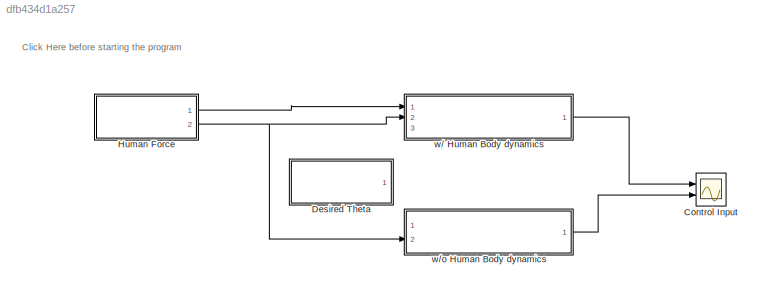
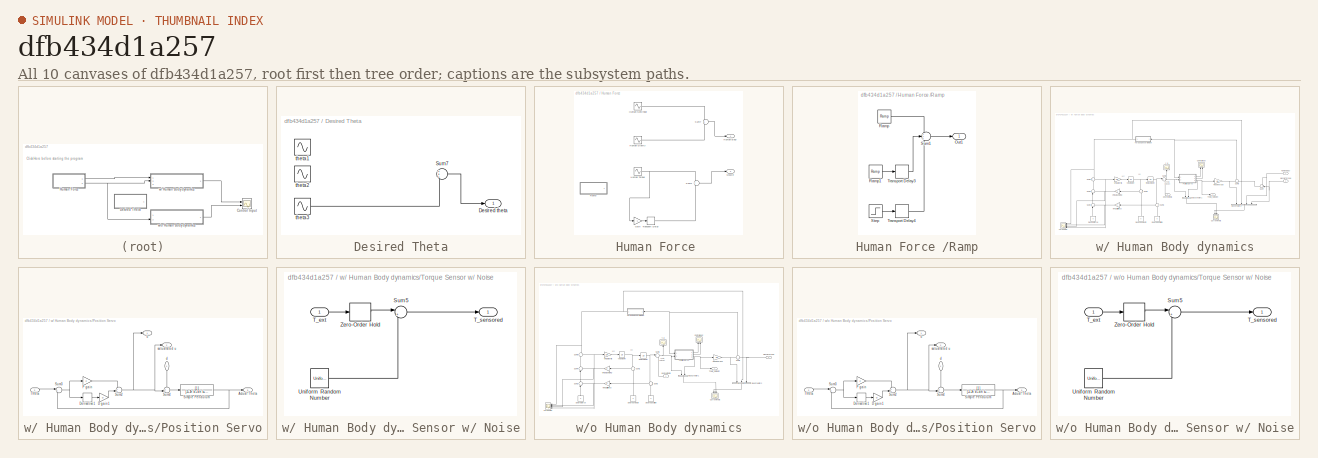
[diagram: thumbnail index - all 10 canvases of the model, root first then tree order]
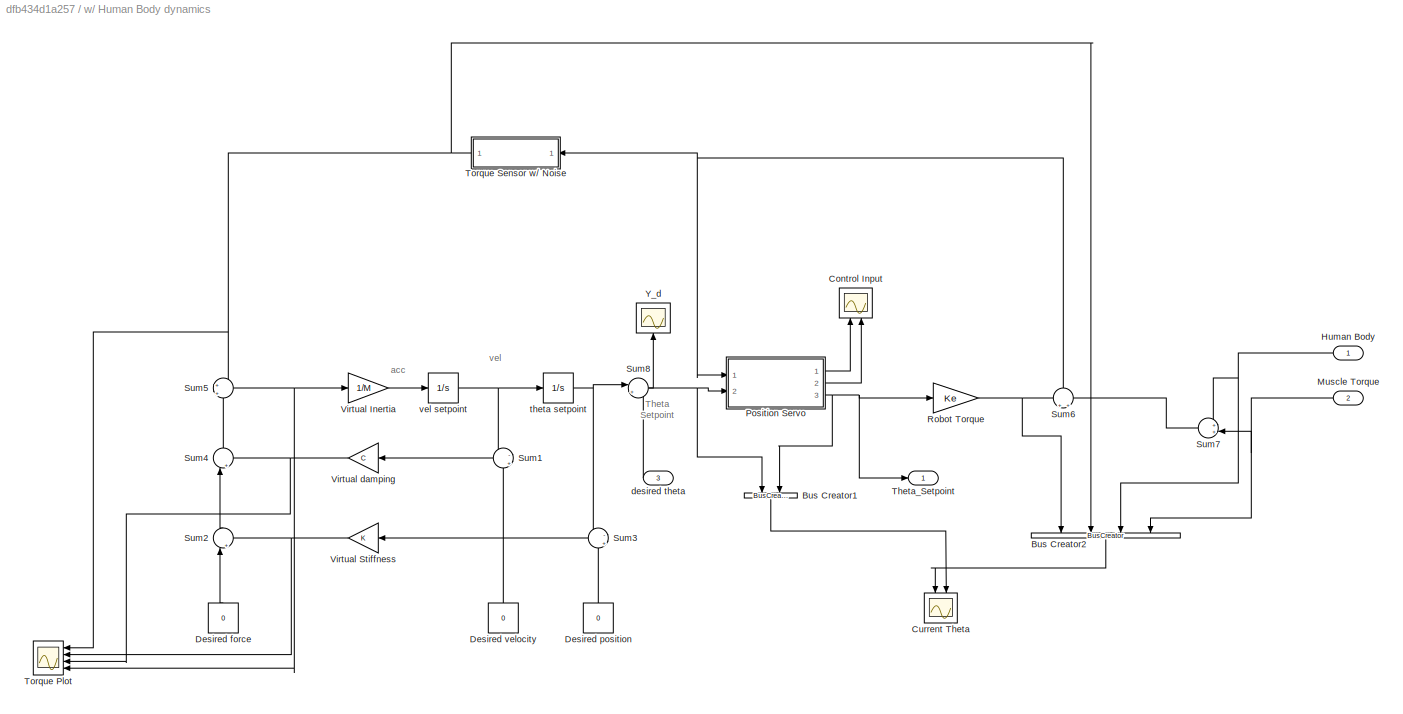
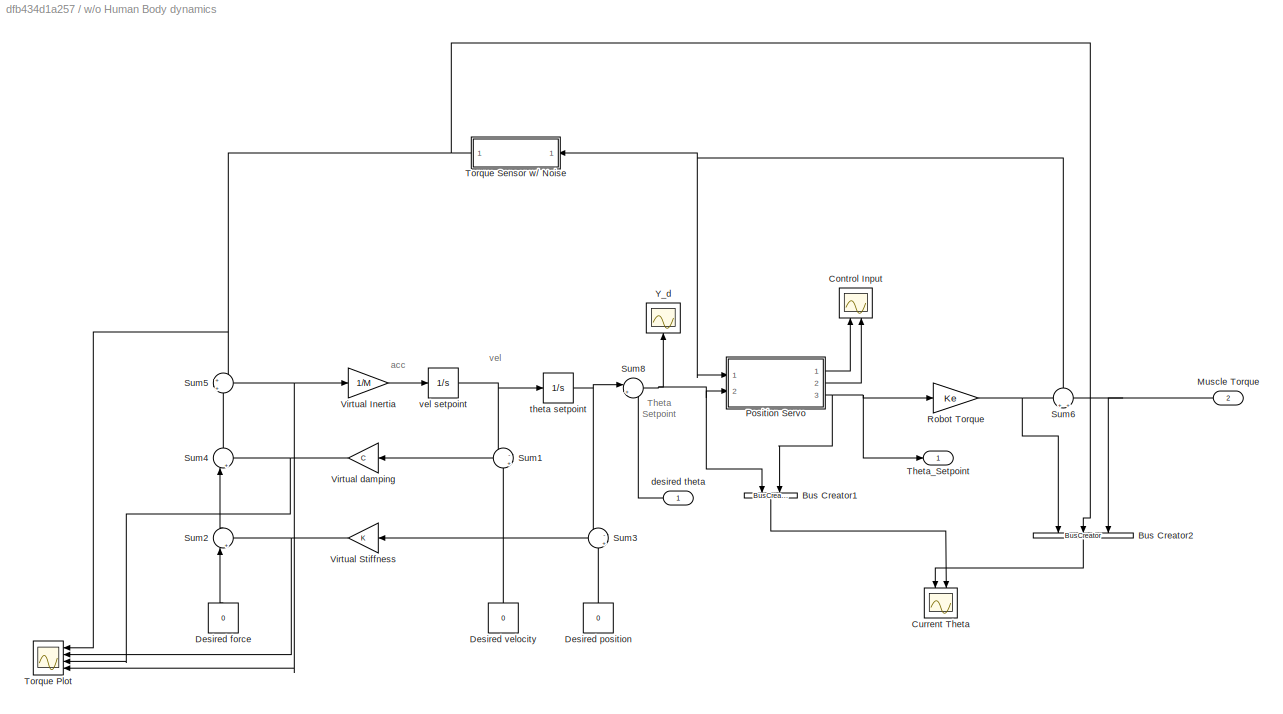
MODEL slx_dfb434d1a257
KIND model
CONFIG AbsTol = auto
CONFIG EnableMultiTasking = off
CONFIG FixedStep = auto
CONFIG MaxStep = auto
CONFIG MinStep = auto
CONFIG RelTol = 1e-3
CONFIG SampleTimeConstraint = Unconstrained
CONFIG Solver = VariableStepAuto
CONFIG SolverName = VariableStepAuto
CONFIG StartTime = 0.0
CONFIG StopTime = 30
BLOCK [Scope] Control Input
  NumInputPorts = 2
  Ports = [2]
  ScopeSpecificationString = Simulink.scopes.TimeScopeBlockCfg('CurrentConfiguration', extmgr.ConfigurationSet(extmgr.Configuration('Core','General UI',true,'FigureColor',[1 1 1]),extmgr.Configuration('Core','Source UI',true),extmgr.Configuration('Sources','WiredSimulink',true,'SampleTime','dt'),extmgr.Configuration('Visuals','Time Domain',true,'SerializedDisplays',{struct('MinYLimReal','-0.95028','MaxYLimReal','0.9403','YLab...<+1732ch>
BLOCK [SubSystem] Desired Theta
  Ports = [0, 1]
  RequestExecContextInheritance = off
  Variant = off
BLOCK [Outport] Desired Theta/Desired theta
  IconDisplay = Port number
BLOCK [Sum] Desired Theta/Sum7
  IconShape = round
  InputSameDT = off
  Inputs = +++
  OutDataTypeStr = Inherit: Inherit via internal rule
  Ports = [3, 1]
  SaturateOnIntegerOverflow = off
BLOCK [Sin] Desired Theta/theta1
  Amplitude = 0.51
  Frequency = 2*pi*1.21
  Ports = [0, 1]
  SampleTime = dt
BLOCK [Sin] Desired Theta/theta2
  Amplitude = 1.2
  Frequency = 2*pi*0.32
  Ports = [0, 1]
  SampleTime = dt
BLOCK [Sin] Desired Theta/theta3
  Amplitude = 3.5
  Frequency = 2*pi*0.126
  Ports = [0, 1]
BLOCK [SubSystem] Human Force 
  Ports = [0, 2]
  RequestExecContextInheritance = off
  Variant = off
BLOCK [Gain] Human Force /Gain
  Gain = -1
  OutDataTypeStr = Inherit: Inherit via internal rule
  ParamDataTypeStr = Inherit: Inherit via internal rule
  SaturateOnIntegerOverflow = off
BLOCK [Outport] Human Force /Human Body
  IconDisplay = Port number
BLOCK [Sin] Human Force /Human Gravity
  Amplitude = 7
  Frequency = 2*pi*0.13
  Ports = [0, 1]
BLOCK [Sin] Human Force /Human Nonlinear
  Amplitude = 1.3
  Frequency = 2*pi*0.63
  Ports = [0, 1]
BLOCK [Sin] Human Force /Human Torque
  Amplitude = 10
  Frequency = 2*JJ*pi
  Ports = [0, 1]
BLOCK [Outport] Human Force /Muscle
  IconDisplay = Port number
  Port = 2
BLOCK [SubSystem] Human Force /Ramp
  Ports = [0, 1]
  RequestExecContextInheritance = off
  Variant = off
BLOCK [Outport] Human Force /Ramp/Out1
  IconDisplay = Port number
BLOCK [Reference] Human Force /Ramp/Ramp  REF=simulink/Sources/Ramp
  Ports = [0, 1]
  SourceBlock = simulink/Sources/Ramp
  SourceType = Ramp
BLOCK [Reference] Human Force /Ramp/Ramp1  REF=simulink/Sources/Ramp
  Ports = [0, 1]
  SourceBlock = simulink/Sources/Ramp
  SourceType = Ramp
BLOCK [Step] Human Force /Ramp/Step
  After = -10
  SampleTime = 0
  Time = 0
BLOCK [Sum] Human Force /Ramp/Sum1
  IconShape = round
  InputSameDT = off
  Inputs = +++
  OutDataTypeStr = Inherit: Inherit via internal rule
  Ports = [3, 1]
  SaturateOnIntegerOverflow = off
BLOCK [TransportDelay] Human Force /Ramp/Transport Delay3
  DelayTime = 10
  Ports = [1, 1]
BLOCK [TransportDelay] Human Force /Ramp/Transport Delay4
  DelayTime = 13
  Ports = [1, 1]
BLOCK [Sum] Human Force /Sum1
  IconShape = round
  InputSameDT = off
  Inputs = +++
  OutDataTypeStr = Inherit: Inherit via internal rule
  Ports = [3, 1]
  SaturateOnIntegerOverflow = off
BLOCK [Sum] Human Force /Sum7
  IconShape = round
  InputSameDT = off
  OutDataTypeStr = Inherit: Inherit via internal rule
  Ports = [2, 1]
  SaturateOnIntegerOverflow = off
BLOCK [TransportDelay] Human Force /Transport Delay
  DelayTime = 3*1/JJ
  Ports = [1, 1]
BLOCK [SubSystem] w// Human Body dynamics
  Ports = [3, 1]
  RequestExecContextInheritance = off
  Variant = off
BLOCK [BusCreator] w// Human Body dynamics/Bus Creator1
  DisplayOption = bar
  InheritFromInputs = on
  Inputs = 2
  Ports = [2, 1]
BLOCK [BusCreator] w// Human Body dynamics/Bus Creator2
  DisplayOption = bar
  InheritFromInputs = on
  Inputs = 4
  Ports = [4, 1]
BLOCK [Scope] w// Human Body dynamics/Control Input
  NumInputPorts = 2
  Ports = [2]
  ScopeSpecificationString = Simulink.scopes.TimeScopeBlockCfg('CurrentConfiguration', extmgr.ConfigurationSet(extmgr.Configuration('Core','General UI',true,'FigureColor',[1 1 1]),extmgr.Configuration('Core','Source UI',true),extmgr.Configuration('Sources','WiredSimulink',true,'SampleTime','dt','DataLoggingVariableName','ScopeData1'),extmgr.Configuration('Visuals','Time Domain',true,'SerializedDisplays',{struct('MinYLimReal',...<+1734ch>
BLOCK [Scope] w// Human Body dynamics/Current Theta
  NumInputPorts = 2
  Ports = [2]
  ScopeSpecificationString = Simulink.scopes.TimeScopeBlockCfg('CurrentConfiguration', extmgr.ConfigurationSet(extmgr.Configuration('Core','General UI',true,'FigureColor',[1 1 1]),extmgr.Configuration('Core','Source UI',true),extmgr.Configuration('Sources','WiredSimulink',true,'SampleTime','dt','DataLoggingVariableName','ScopeData2'),extmgr.Configuration('Visuals','Time Domain',true,'SerializedDisplays',{struct('MinYLimReal',...<+2815ch>
BLOCK [Constant] w// Human Body dynamics/Desired force
  SampleTime = dt
  Value = 0
BLOCK [Constant] w// Human Body dynamics/Desired position
  SampleTime = dt
  Value = 0
BLOCK [Constant] w// Human Body dynamics/Desired velocity
  SampleTime = dt
  Value = 0
BLOCK [Inport] w// Human Body dynamics/Human Body
  IconDisplay = Port number
BLOCK [Inport] w// Human Body dynamics/Muscle Torque
  IconDisplay = Port number
  Port = 2
BLOCK [SubSystem] w// Human Body dynamics/Position Servo
  Ports = [2, 3]
  RequestExecContextInheritance = off
  Variant = off
BLOCK [Outport] w// Human Body dynamics/Position Servo/Actual Theta
  IconDisplay = Port number
  Port = 3
BLOCK [Gain] w// Human Body dynamics/Position Servo/D gain1
  Gain = D
  OutDataTypeStr = Inherit: Inherit via internal rule
  ParamDataTypeStr = Inherit: Inherit via internal rule
  SaturateOnIntegerOverflow = off
BLOCK [Derivative] w// Human Body dynamics/Position Servo/Derivative1
BLOCK [Gain] w// Human Body dynamics/Position Servo/P gain
  Gain = P
  OutDataTypeStr = Inherit: Inherit via internal rule
  ParamDataTypeStr = Inherit: Inherit via internal rule
  SaturateOnIntegerOverflow = off
BLOCK [TransferFcn] w// Human Body dynamics/Position Servo/Simple Pendulum
  ContinuousStateAttributes = 'Single_Pendulum'
  Denominator = [J+Jh b+bh k+kh]
BLOCK [Sum] w// Human Body dynamics/Position Servo/Sum2
  IconShape = round
  InputSameDT = off
  Inputs = +|+
  OutDataTypeStr = Inherit: Inherit via internal rule
  Ports = [2, 1]
  SaturateOnIntegerOverflow = off
BLOCK [Sum] w// Human Body dynamics/Position Servo/Sum3
  IconShape = round
  InputSameDT = off
  Inputs = |+-
  OutDataTypeStr = Inherit: Inherit via internal rule
  Ports = [2, 1]
  SaturateOnIntegerOverflow = off
BLOCK [Sum] w// Human Body dynamics/Position Servo/Sum4
  IconShape = round
  InputSameDT = off
  Inputs = ++|
  OutDataTypeStr = Inherit: Inherit via internal rule
  Ports = [2, 1]
  SaturateOnIntegerOverflow = off
BLOCK [Inport] w// Human Body dynamics/Position Servo/Theta
  IconDisplay = Port number
  Port = 2
BLOCK [Inport] w// Human Body dynamics/Position Servo/d
  IconDisplay = Port number
BLOCK [Outport] w// Human Body dynamics/Position Servo/satuarated u
  IconDisplay = Port number
  Port = 2
BLOCK [Outport] w// Human Body dynamics/Position Servo/u
  IconDisplay = Port number
BLOCK [Gain] w// Human Body dynamics/Robot Torque
  Gain = Ke
  OutDataTypeStr = Inherit: Inherit via internal rule
  ParamDataTypeStr = Inherit: Inherit via internal rule
  SaturateOnIntegerOverflow = off
BLOCK [Sum] w// Human Body dynamics/Sum1
  IconShape = round
  InputSameDT = off
  Inputs = -|+
  OutDataTypeStr = Inherit: Inherit via internal rule
  Ports = [2, 1]
  SaturateOnIntegerOverflow = off
BLOCK [Sum] w// Human Body dynamics/Sum2
  IconShape = round
  InputSameDT = off
  Inputs = |++
  OutDataTypeStr = Inherit: Inherit via internal rule
  Ports = [2, 1]
  SaturateOnIntegerOverflow = off
BLOCK [Sum] w// Human Body dynamics/Sum3
  IconShape = round
  InputSameDT = off
  Inputs = -|+
  OutDataTypeStr = Inherit: Inherit via internal rule
  Ports = [2, 1]
  SaturateOnIntegerOverflow = off
BLOCK [Sum] w// Human Body dynamics/Sum4
  IconShape = round
  InputSameDT = off
  Inputs = |++
  OutDataTypeStr = Inherit: Inherit via internal rule
  Ports = [2, 1]
  SaturateOnIntegerOverflow = off
BLOCK [Sum] w// Human Body dynamics/Sum5
  IconShape = round
  InputSameDT = off
  Inputs = +|+
  OutDataTypeStr = Inherit: Inherit via internal rule
  Ports = [2, 1]
  SaturateOnIntegerOverflow = off
BLOCK [Sum] w// Human Body dynamics/Sum6
  IconShape = round
  InputSameDT = off
  Inputs = +|+
  OutDataTypeStr = Inherit: Inherit via internal rule
  Ports = [2, 1]
  SaturateOnIntegerOverflow = off
BLOCK [Sum] w// Human Body dynamics/Sum7
  IconShape = round
  InputSameDT = off
  OutDataTypeStr = Inherit: Inherit via internal rule
  Ports = [2, 1]
  SaturateOnIntegerOverflow = off
BLOCK [Sum] w// Human Body dynamics/Sum8
  IconShape = round
  InputSameDT = off
  Inputs = |++
  OutDataTypeStr = Inherit: Inherit via internal rule
  Ports = [2, 1]
  SaturateOnIntegerOverflow = off
BLOCK [Outport] w// Human Body dynamics/Theta_Setpoint
  IconDisplay = Port number
BLOCK [Scope] w// Human Body dynamics/Torque Plot
  NumInputPorts = 4
  Ports = [4]
  ScopeSpecificationString = Simulink.scopes.TimeScopeBlockCfg('CurrentConfiguration', extmgr.ConfigurationSet(extmgr.Configuration('Core','General UI',true),extmgr.Configuration('Core','Source UI',true),extmgr.Configuration('Sources','WiredSimulink',true,'SampleTime','dt','DataLoggingVariableName','ScopeData3'),extmgr.Configuration('Visuals','Time Domain',true,'SerializedDisplays',{struct('MinYLimReal','-15.7348','MaxYLimRea...<+1473ch>
BLOCK [SubSystem] w// Human Body dynamics/Torque Sensor w// Noise
  Ports = [1, 1]
  RequestExecContextInheritance = off
  Variant = off
BLOCK [Sum] w// Human Body dynamics/Torque Sensor w// Noise/Sum5
  IconShape = round
  InputSameDT = off
  Inputs = |++
  OutDataTypeStr = Inherit: Inherit via internal rule
  Ports = [2, 1]
  SaturateOnIntegerOverflow = off
BLOCK [Inport] w// Human Body dynamics/Torque Sensor w// Noise/T_ext
  IconDisplay = Port number
BLOCK [Outport] w// Human Body dynamics/Torque Sensor w// Noise/T_sensored
  IconDisplay = Port number
BLOCK [UniformRandomNumber] w// Human Body dynamics/Torque Sensor w// Noise/Uniform Random Number
  Maximum = 0.5
  Minimum = -0.5
  SampleTime = 0.005
BLOCK [ZeroOrderHold] w// Human Body dynamics/Torque Sensor w// Noise/Zero-Order Hold
  SampleTime = dt
BLOCK [Gain] w// Human Body dynamics/Virtual Inertia
  Gain = 1/M
  OutDataTypeStr = Inherit: Inherit via internal rule
  ParamDataTypeStr = Inherit: Inherit via internal rule
  SaturateOnIntegerOverflow = off
BLOCK [Gain] w// Human Body dynamics/Virtual Stiffness
  Gain = K
  OutDataTypeStr = Inherit: Inherit via internal rule
  ParamDataTypeStr = Inherit: Inherit via internal rule
  SaturateOnIntegerOverflow = off
BLOCK [Gain] w// Human Body dynamics/Virtual damping
  Gain = C
  OutDataTypeStr = Inherit: Inherit via internal rule
  ParamDataTypeStr = Inherit: Inherit via internal rule
  SaturateOnIntegerOverflow = off
BLOCK [Scope] w// Human Body dynamics/Y_d
  NumInputPorts = 1
  Ports = [1]
  ScopeSpecificationString = Simulink.scopes.TimeScopeBlockCfg('CurrentConfiguration', extmgr.ConfigurationSet(extmgr.Configuration('Core','General UI',true),extmgr.Configuration('Core','Source UI',true),extmgr.Configuration('Sources','WiredSimulink',true,'SampleTime','dt','DataLoggingVariableName','ScopeData4'),extmgr.Configuration('Visuals','Time Domain',true,'SerializedDisplays',{struct('MinYLimReal','-13.39338','MaxYLimRe...<+1377ch>
BLOCK [Inport] w// Human Body dynamics/desired theta
  IconDisplay = Port number
  Port = 3
BLOCK [Integrator] w// Human Body dynamics/theta setpoint
  Ports = [1, 1]
BLOCK [Integrator] w// Human Body dynamics/vel setpoint
  Ports = [1, 1]
BLOCK [SubSystem] w//o Human Body dynamics
  Ports = [2, 1]
  RequestExecContextInheritance = off
  Variant = off
BLOCK [BusCreator] w//o Human Body dynamics/Bus Creator1
  DisplayOption = bar
  InheritFromInputs = on
  Inputs = 2
  Ports = [2, 1]
BLOCK [BusCreator] w//o Human Body dynamics/Bus Creator2
  DisplayOption = bar
  InheritFromInputs = on
  Inputs = 3
  Ports = [3, 1]
BLOCK [Scope] w//o Human Body dynamics/Control Input
  NumInputPorts = 2
  Ports = [2]
  ScopeSpecificationString = Simulink.scopes.TimeScopeBlockCfg('CurrentConfiguration', extmgr.ConfigurationSet(extmgr.Configuration('Core','General UI',true,'FigureColor',[1 1 1]),extmgr.Configuration('Core','Source UI',true),extmgr.Configuration('Sources','WiredSimulink',true,'SampleTime','dt','DataLoggingVariableName','ScopeData1'),extmgr.Configuration('Visuals','Time Domain',true,'SerializedDisplays',{struct('MinYLimReal',...<+1733ch>
BLOCK [Scope] w//o Human Body dynamics/Current Theta
  NumInputPorts = 2
  Ports = [2]
  ScopeSpecificationString = Simulink.scopes.TimeScopeBlockCfg('CurrentConfiguration', extmgr.ConfigurationSet(extmgr.Configuration('Core','General UI',true,'FigureColor',[1 1 1]),extmgr.Configuration('Core','Source UI',true),extmgr.Configuration('Sources','WiredSimulink',true,'SampleTime','dt','DataLoggingVariableName','ScopeData2'),extmgr.Configuration('Visuals','Time Domain',true,'SerializedDisplays',{struct('MinYLimReal',...<+2685ch>
BLOCK [Constant] w//o Human Body dynamics/Desired force
  SampleTime = dt
  Value = 0
BLOCK [Constant] w//o Human Body dynamics/Desired position
  SampleTime = dt
  Value = 0
BLOCK [Constant] w//o Human Body dynamics/Desired velocity
  SampleTime = dt
  Value = 0
BLOCK [Inport] w//o Human Body dynamics/Muscle Torque
  IconDisplay = Port number
  Port = 2
BLOCK [SubSystem] w//o Human Body dynamics/Position Servo
  Ports = [2, 3]
  RequestExecContextInheritance = off
  Variant = off
BLOCK [Outport] w//o Human Body dynamics/Position Servo/Actual Theta
  IconDisplay = Port number
  Port = 3
BLOCK [Gain] w//o Human Body dynamics/Position Servo/D gain1
  Gain = D
  OutDataTypeStr = Inherit: Inherit via internal rule
  ParamDataTypeStr = Inherit: Inherit via internal rule
  SaturateOnIntegerOverflow = off
BLOCK [Derivative] w//o Human Body dynamics/Position Servo/Derivative1
BLOCK [Gain] w//o Human Body dynamics/Position Servo/P gain
  Gain = P
  OutDataTypeStr = Inherit: Inherit via internal rule
  ParamDataTypeStr = Inherit: Inherit via internal rule
  SaturateOnIntegerOverflow = off
BLOCK [TransferFcn] w//o Human Body dynamics/Position Servo/Simple Pendulum
  ContinuousStateAttributes = 'Single_Pendulum'
  Denominator = [J+Jh b+bh k+kh]
BLOCK [Sum] w//o Human Body dynamics/Position Servo/Sum2
  IconShape = round
  InputSameDT = off
  Inputs = +|+
  OutDataTypeStr = Inherit: Inherit via internal rule
  Ports = [2, 1]
  SaturateOnIntegerOverflow = off
BLOCK [Sum] w//o Human Body dynamics/Position Servo/Sum3
  IconShape = round
  InputSameDT = off
  Inputs = |+-
  OutDataTypeStr = Inherit: Inherit via internal rule
  Ports = [2, 1]
  SaturateOnIntegerOverflow = off
BLOCK [Sum] w//o Human Body dynamics/Position Servo/Sum4
  IconShape = round
  InputSameDT = off
  Inputs = ++|
  OutDataTypeStr = Inherit: Inherit via internal rule
  Ports = [2, 1]
  SaturateOnIntegerOverflow = off
BLOCK [Inport] w//o Human Body dynamics/Position Servo/Theta
  IconDisplay = Port number
  Port = 2
BLOCK [Inport] w//o Human Body dynamics/Position Servo/d
  IconDisplay = Port number
BLOCK [Outport] w//o Human Body dynamics/Position Servo/satuarated u
  IconDisplay = Port number
  Port = 2
BLOCK [Outport] w//o Human Body dynamics/Position Servo/u
  IconDisplay = Port number
BLOCK [Gain] w//o Human Body dynamics/Robot Torque
  Gain = Ke
  OutDataTypeStr = Inherit: Inherit via internal rule
  ParamDataTypeStr = Inherit: Inherit via internal rule
  SaturateOnIntegerOverflow = off
BLOCK [Sum] w//o Human Body dynamics/Sum1
  IconShape = round
  InputSameDT = off
  Inputs = -|+
  OutDataTypeStr = Inherit: Inherit via internal rule
  Ports = [2, 1]
  SaturateOnIntegerOverflow = off
BLOCK [Sum] w//o Human Body dynamics/Sum2
  IconShape = round
  InputSameDT = off
  Inputs = |++
  OutDataTypeStr = Inherit: Inherit via internal rule
  Ports = [2, 1]
  SaturateOnIntegerOverflow = off
BLOCK [Sum] w//o Human Body dynamics/Sum3
  IconShape = round
  InputSameDT = off
  Inputs = -|+
  OutDataTypeStr = Inherit: Inherit via internal rule
  Ports = [2, 1]
  SaturateOnIntegerOverflow = off
BLOCK [Sum] w//o Human Body dynamics/Sum4
  IconShape = round
  InputSameDT = off
  Inputs = |++
  OutDataTypeStr = Inherit: Inherit via internal rule
  Ports = [2, 1]
  SaturateOnIntegerOverflow = off
BLOCK [Sum] w//o Human Body dynamics/Sum5
  IconShape = round
  InputSameDT = off
  Inputs = +|+
  OutDataTypeStr = Inherit: Inherit via internal rule
  Ports = [2, 1]
  SaturateOnIntegerOverflow = off
BLOCK [Sum] w//o Human Body dynamics/Sum6
  IconShape = round
  InputSameDT = off
  Inputs = +|+
  OutDataTypeStr = Inherit: Inherit via internal rule
  Ports = [2, 1]
  SaturateOnIntegerOverflow = off
BLOCK [Sum] w//o Human Body dynamics/Sum8
  IconShape = round
  InputSameDT = off
  Inputs = |++
  OutDataTypeStr = Inherit: Inherit via internal rule
  Ports = [2, 1]
  SaturateOnIntegerOverflow = off
BLOCK [Outport] w//o Human Body dynamics/Theta_Setpoint
  IconDisplay = Port number
BLOCK [Scope] w//o Human Body dynamics/Torque Plot
  NumInputPorts = 4
  Ports = [4]
  ScopeSpecificationString = Simulink.scopes.TimeScopeBlockCfg('CurrentConfiguration', extmgr.ConfigurationSet(extmgr.Configuration('Core','General UI',true),extmgr.Configuration('Core','Source UI',true),extmgr.Configuration('Sources','WiredSimulink',true,'SampleTime','dt','DataLoggingVariableName','ScopeData3'),extmgr.Configuration('Visuals','Time Domain',true,'SerializedDisplays',{struct('MinYLimReal','-15.7348','MaxYLimRea...<+1473ch>
BLOCK [SubSystem] w//o Human Body dynamics/Torque Sensor w// Noise
  Ports = [1, 1]
  RequestExecContextInheritance = off
  Variant = off
BLOCK [Sum] w//o Human Body dynamics/Torque Sensor w// Noise/Sum5
  IconShape = round
  InputSameDT = off
  Inputs = |++
  OutDataTypeStr = Inherit: Inherit via internal rule
  Ports = [2, 1]
  SaturateOnIntegerOverflow = off
BLOCK [Inport] w//o Human Body dynamics/Torque Sensor w// Noise/T_ext
  IconDisplay = Port number
BLOCK [Outport] w//o Human Body dynamics/Torque Sensor w// Noise/T_sensored
  IconDisplay = Port number
BLOCK [UniformRandomNumber] w//o Human Body dynamics/Torque Sensor w// Noise/Uniform Random Number
  Maximum = 0.5
  Minimum = -0.5
  SampleTime = 0.005
BLOCK [ZeroOrderHold] w//o Human Body dynamics/Torque Sensor w// Noise/Zero-Order Hold
  SampleTime = dt
BLOCK [Gain] w//o Human Body dynamics/Virtual Inertia
  Gain = 1/M
  OutDataTypeStr = Inherit: Inherit via internal rule
  ParamDataTypeStr = Inherit: Inherit via internal rule
  SaturateOnIntegerOverflow = off
BLOCK [Gain] w//o Human Body dynamics/Virtual Stiffness
  Gain = K
  OutDataTypeStr = Inherit: Inherit via internal rule
  ParamDataTypeStr = Inherit: Inherit via internal rule
  SaturateOnIntegerOverflow = off
BLOCK [Gain] w//o Human Body dynamics/Virtual damping
  Gain = C
  OutDataTypeStr = Inherit: Inherit via internal rule
  ParamDataTypeStr = Inherit: Inherit via internal rule
  SaturateOnIntegerOverflow = off
BLOCK [Scope] w//o Human Body dynamics/Y_d
  NumInputPorts = 1
  Ports = [1]
  ScopeSpecificationString = Simulink.scopes.TimeScopeBlockCfg('CurrentConfiguration', extmgr.ConfigurationSet(extmgr.Configuration('Core','General UI',true),extmgr.Configuration('Core','Source UI',true),extmgr.Configuration('Sources','WiredSimulink',true,'SampleTime','dt','DataLoggingVariableName','ScopeData4'),extmgr.Configuration('Visuals','Time Domain',true,'SerializedDisplays',{struct('MinYLimReal','-7.56783','MaxYLimRea...<+1385ch>
BLOCK [Inport] w//o Human Body dynamics/desired theta
  IconDisplay = Port number
BLOCK [Integrator] w//o Human Body dynamics/theta setpoint
  Ports = [1, 1]
BLOCK [Integrator] w//o Human Body dynamics/vel setpoint
  Ports = [1, 1]
ANNOTATION (root): Click Here before starting the program
ANNOTATION w// Human Body dynamics: Theta Setpoint
ANNOTATION w// Human Body dynamics: acc
ANNOTATION w// Human Body dynamics: vel
ANNOTATION w//o Human Body dynamics: Theta Setpoint
ANNOTATION w//o Human Body dynamics: acc
ANNOTATION w//o Human Body dynamics: vel
LINE Desired Theta/Sum7:1 -> Desired Theta/Desired theta:1
LINE Desired Theta/theta3:1 -> Desired Theta/Sum7:3
LINE Human Force /Gain:1 -> Human Force /Transport Delay:1
LINE Human Force /Human Gravity:1 -> Human Force /Sum7:2
LINE Human Force /Human Nonlinear:1 -> Human Force /Sum7:1
NET Human Force /Human Torque:1 -> Human Force /Gain:1, Human Force /Sum1:1
LINE Human Force /Ramp/Ramp1:1 -> Human Force /Ramp/Transport Delay3:1
LINE Human Force /Ramp/Ramp:1 -> Human Force /Ramp/Sum1:1
LINE Human Force /Ramp/Step:1 -> Human Force /Ramp/Transport Delay4:1
LINE Human Force /Ramp/Sum1:1 -> Human Force /Ramp/Out1:1
LINE Human Force /Ramp/Transport Delay3:1 -> Human Force /Ramp/Sum1:2
LINE Human Force /Ramp/Transport Delay4:1 -> Human Force /Ramp/Sum1:3
LINE Human Force /Sum1:1 -> Human Force /Muscle:1
LINE Human Force /Sum7:1 -> Human Force /Human Body:1
LINE Human Force /Transport Delay:1 -> Human Force /Sum1:3
LINE Human Force :1 -> w// Human Body dynamics:1
NET Human Force :2 -> w// Human Body dynamics:2, w//o Human Body dynamics:2
LINE w// Human Body dynamics/Bus Creator1:1 -> w// Human Body dynamics/Current Theta:2
LINE w// Human Body dynamics/Bus Creator2:1 -> w// Human Body dynamics/Current Theta:1
LINE w// Human Body dynamics/Desired force:1 -> w// Human Body dynamics/Sum2:1
LINE w// Human Body dynamics/Desired position:1 -> w// Human Body dynamics/Sum3:2
LINE w// Human Body dynamics/Desired velocity:1 -> w// Human Body dynamics/Sum1:2
NET w// Human Body dynamics/Human Body:1 -> w// Human Body dynamics/Bus Creator2:3, w// Human Body dynamics/Sum7:1
NET w// Human Body dynamics/Muscle Torque:1 -> w// Human Body dynamics/Bus Creator2:4, w// Human Body dynamics/Sum7:2
LINE w// Human Body dynamics/Position Servo/D gain1:1 -> w// Human Body dynamics/Position Servo/Sum2:2
LINE w// Human Body dynamics/Position Servo/Derivative1:1 -> w// Human Body dynamics/Position Servo/D gain1:1
LINE w// Human Body dynamics/Position Servo/P gain:1 -> w// Human Body dynamics/Position Servo/Sum2:1
NET w// Human Body dynamics/Position Servo/Simple Pendulum:1 -> w// Human Body dynamics/Position Servo/Actual Theta:1, w// Human Body dynamics/Position Servo/Sum3:2
NET w// Human Body dynamics/Position Servo/Sum2:1 -> w// Human Body dynamics/Position Servo/Sum4:2, w// Human Body dynamics/Position Servo/satuarated u:1, w// Human Body dynamics/Position Servo/u:1
NET w// Human Body dynamics/Position Servo/Sum3:1 -> w// Human Body dynamics/Position Servo/Derivative1:1, w// Human Body dynamics/Position Servo/P gain:1
LINE w// Human Body dynamics/Position Servo/Sum4:1 -> w// Human Body dynamics/Position Servo/Simple Pendulum:1
LINE w// Human Body dynamics/Position Servo/Theta:1 -> w// Human Body dynamics/Position Servo/Sum3:1
LINE w// Human Body dynamics/Position Servo/d:1 -> w// Human Body dynamics/Position Servo/Sum4:1
LINE w// Human Body dynamics/Position Servo:1 -> w// Human Body dynamics/Control Input:1
LINE w// Human Body dynamics/Position Servo:2 -> w// Human Body dynamics/Control Input:2
NET w// Human Body dynamics/Position Servo:3 -> w// Human Body dynamics/Bus Creator1:2, w// Human Body dynamics/Robot Torque:1, w// Human Body dynamics/Theta_Setpoint:1
NET w// Human Body dynamics/Robot Torque:1 -> w// Human Body dynamics/Bus Creator2:1, w// Human Body dynamics/Sum6:1
LINE w// Human Body dynamics/Sum1:1 -> w// Human Body dynamics/Virtual damping:1
LINE w// Human Body dynamics/Sum2:1 -> w// Human Body dynamics/Sum4:1
LINE w// Human Body dynamics/Sum3:1 -> w// Human Body dynamics/Virtual Stiffness:1
LINE w// Human Body dynamics/Sum4:1 -> w// Human Body dynamics/Sum5:2
NET w// Human Body dynamics/Sum5:1 -> w// Human Body dynamics/Torque Plot:4, w// Human Body dynamics/Virtual Inertia:1
NET w// Human Body dynamics/Sum6:1 -> w// Human Body dynamics/Position Servo:1, w// Human Body dynamics/Torque Sensor w// Noise:1
LINE w// Human Body dynamics/Sum7:1 -> w// Human Body dynamics/Sum6:2
NET w// Human Body dynamics/Sum8:1 -> w// Human Body dynamics/Bus Creator1:1, w// Human Body dynamics/Position Servo:2, w// Human Body dynamics/Y_d:1
LINE w// Human Body dynamics/Torque Sensor w// Noise/Sum5:1 -> w// Human Body dynamics/Torque Sensor w// Noise/T_sensored:1
LINE w// Human Body dynamics/Torque Sensor w// Noise/T_ext:1 -> w// Human Body dynamics/Torque Sensor w// Noise/Zero-Order Hold:1
LINE w// Human Body dynamics/Torque Sensor w// Noise/Uniform Random Number:1 -> w// Human Body dynamics/Torque Sensor w// Noise/Sum5:2
LINE w// Human Body dynamics/Torque Sensor w// Noise/Zero-Order Hold:1 -> w// Human Body dynamics/Torque Sensor w// Noise/Sum5:1
NET w// Human Body dynamics/Torque Sensor w// Noise:1 -> w// Human Body dynamics/Bus Creator2:2, w// Human Body dynamics/Sum5:1, w// Human Body dynamics/Torque Plot:1
LINE w// Human Body dynamics/Virtual Inertia:1 -> w// Human Body dynamics/vel setpoint:1
NET w// Human Body dynamics/Virtual Stiffness:1 -> w// Human Body dynamics/Sum2:2, w// Human Body dynamics/Torque Plot:2
NET w// Human Body dynamics/Virtual damping:1 -> w// Human Body dynamics/Sum4:2, w// Human Body dynamics/Torque Plot:3
LINE w// Human Body dynamics/desired theta:1 -> w// Human Body dynamics/Sum8:2
NET w// Human Body dynamics/theta setpoint:1 -> w// Human Body dynamics/Sum3:1, w// Human Body dynamics/Sum8:1
NET w// Human Body dynamics/vel setpoint:1 -> w// Human Body dynamics/Sum1:1, w// Human Body dynamics/theta setpoint:1
LINE w// Human Body dynamics:1 -> Control Input:1
LINE w//o Human Body dynamics/Bus Creator1:1 -> w//o Human Body dynamics/Current Theta:2
LINE w//o Human Body dynamics/Bus Creator2:1 -> w//o Human Body dynamics/Current Theta:1
LINE w//o Human Body dynamics/Desired force:1 -> w//o Human Body dynamics/Sum2:1
LINE w//o Human Body dynamics/Desired position:1 -> w//o Human Body dynamics/Sum3:2
LINE w//o Human Body dynamics/Desired velocity:1 -> w//o Human Body dynamics/Sum1:2
NET w//o Human Body dynamics/Muscle Torque:1 -> w//o Human Body dynamics/Bus Creator2:3, w//o Human Body dynamics/Sum6:2
LINE w//o Human Body dynamics/Position Servo/D gain1:1 -> w//o Human Body dynamics/Position Servo/Sum2:2
LINE w//o Human Body dynamics/Position Servo/Derivative1:1 -> w//o Human Body dynamics/Position Servo/D gain1:1
LINE w//o Human Body dynamics/Position Servo/P gain:1 -> w//o Human Body dynamics/Position Servo/Sum2:1
NET w//o Human Body dynamics/Position Servo/Simple Pendulum:1 -> w//o Human Body dynamics/Position Servo/Actual Theta:1, w//o Human Body dynamics/Position Servo/Sum3:2
NET w//o Human Body dynamics/Position Servo/Sum2:1 -> w//o Human Body dynamics/Position Servo/Sum4:2, w//o Human Body dynamics/Position Servo/satuarated u:1, w//o Human Body dynamics/Position Servo/u:1
NET w//o Human Body dynamics/Position Servo/Sum3:1 -> w//o Human Body dynamics/Position Servo/Derivative1:1, w//o Human Body dynamics/Position Servo/P gain:1
LINE w//o Human Body dynamics/Position Servo/Sum4:1 -> w//o Human Body dynamics/Position Servo/Simple Pendulum:1
LINE w//o Human Body dynamics/Position Servo/Theta:1 -> w//o Human Body dynamics/Position Servo/Sum3:1
LINE w//o Human Body dynamics/Position Servo/d:1 -> w//o Human Body dynamics/Position Servo/Sum4:1
LINE w//o Human Body dynamics/Position Servo:1 -> w//o Human Body dynamics/Control Input:1
LINE w//o Human Body dynamics/Position Servo:2 -> w//o Human Body dynamics/Control Input:2
NET w//o Human Body dynamics/Position Servo:3 -> w//o Human Body dynamics/Bus Creator1:2, w//o Human Body dynamics/Robot Torque:1, w//o Human Body dynamics/Theta_Setpoint:1
NET w//o Human Body dynamics/Robot Torque:1 -> w//o Human Body dynamics/Bus Creator2:1, w//o Human Body dynamics/Sum6:1
LINE w//o Human Body dynamics/Sum1:1 -> w//o Human Body dynamics/Virtual damping:1
LINE w//o Human Body dynamics/Sum2:1 -> w//o Human Body dynamics/Sum4:1
LINE w//o Human Body dynamics/Sum3:1 -> w//o Human Body dynamics/Virtual Stiffness:1
LINE w//o Human Body dynamics/Sum4:1 -> w//o Human Body dynamics/Sum5:2
NET w//o Human Body dynamics/Sum5:1 -> w//o Human Body dynamics/Torque Plot:4, w//o Human Body dynamics/Virtual Inertia:1
NET w//o Human Body dynamics/Sum6:1 -> w//o Human Body dynamics/Position Servo:1, w//o Human Body dynamics/Torque Sensor w// Noise:1
NET w//o Human Body dynamics/Sum8:1 -> w//o Human Body dynamics/Bus Creator1:1, w//o Human Body dynamics/Position Servo:2, w//o Human Body dynamics/Y_d:1
LINE w//o Human Body dynamics/Torque Sensor w// Noise/Sum5:1 -> w//o Human Body dynamics/Torque Sensor w// Noise/T_sensored:1
LINE w//o Human Body dynamics/Torque Sensor w// Noise/T_ext:1 -> w//o Human Body dynamics/Torque Sensor w// Noise/Zero-Order Hold:1
LINE w//o Human Body dynamics/Torque Sensor w// Noise/Uniform Random Number:1 -> w//o Human Body dynamics/Torque Sensor w// Noise/Sum5:2
LINE w//o Human Body dynamics/Torque Sensor w// Noise/Zero-Order Hold:1 -> w//o Human Body dynamics/Torque Sensor w// Noise/Sum5:1
NET w//o Human Body dynamics/Torque Sensor w// Noise:1 -> w//o Human Body dynamics/Bus Creator2:2, w//o Human Body dynamics/Sum5:1, w//o Human Body dynamics/Torque Plot:1
LINE w//o Human Body dynamics/Virtual Inertia:1 -> w//o Human Body dynamics/vel setpoint:1
NET w//o Human Body dynamics/Virtual Stiffness:1 -> w//o Human Body dynamics/Sum2:2, w//o Human Body dynamics/Torque Plot:2
NET w//o Human Body dynamics/Virtual damping:1 -> w//o Human Body dynamics/Sum4:2, w//o Human Body dynamics/Torque Plot:3
LINE w//o Human Body dynamics/desired theta:1 -> w//o Human Body dynamics/Sum8:2
NET w//o Human Body dynamics/theta setpoint:1 -> w//o Human Body dynamics/Sum3:1, w//o Human Body dynamics/Sum8:1
NET w//o Human Body dynamics/vel setpoint:1 -> w//o Human Body dynamics/Sum1:1, w//o Human Body dynamics/theta setpoint:1
LINE w//o Human Body dynamics:1 -> Control Input:2
note: NET lines group one-source signal fan-out (src -> all destinations, sorted); 1:1 wires keep LINE
